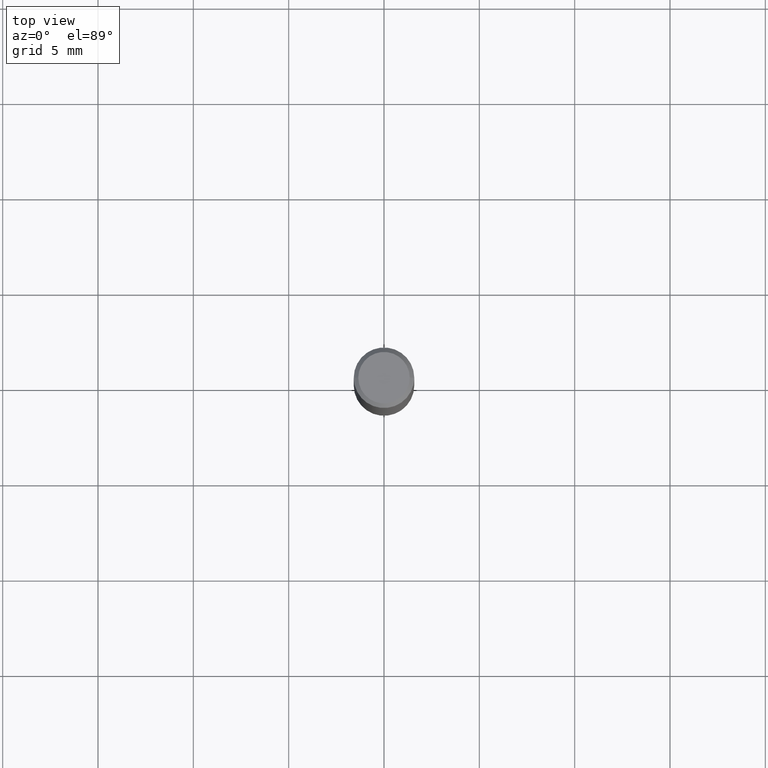
[diagram: clean part render]
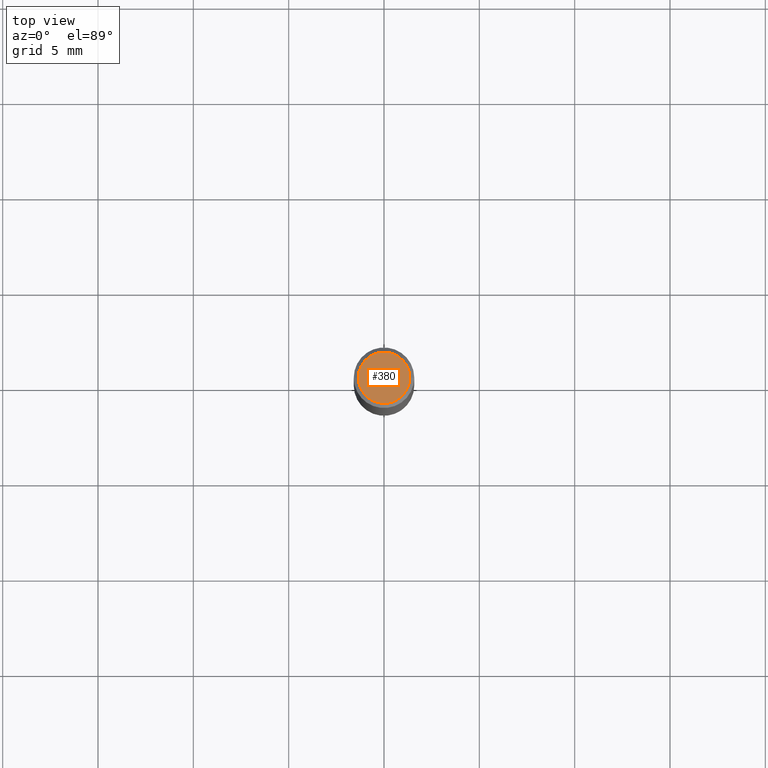
[diagram: same view with one face highlighted and labeled with its STEP entity id]
A machine part, top view. The second image highlights one B-rep face of the part: STEP entity #380.
In plain terms, the highlighted planar face has unit normal (0, -0, -1).
Its self-contained STEP definition (entity closure, byte-faithful):
#59 = CARTESIAN_POINT ( 'NONE',  ( 0.05312499999999999861, -4.129888592719939842E-16, -5.787680772767651417E-18 ) ) ;
#86 = AXIS2_PLACEMENT_3D ( 'NONE', #349, #297, #576 ) ;
#104 = FACE_OUTER_BOUND ( 'NONE', #316, .T. ) ;
#117 = ORIENTED_EDGE ( 'NONE', *, *, #335, .T. ) ;
#164 = AXIS2_PLACEMENT_3D ( 'NONE', #247, #286, #462 ) ;
#242 = DIRECTION ( 'NONE',  ( -2.445468806185136597E-29, 3.491481338843145583E-15, 1.000000000000000000 ) ) ;
#246 = VERTEX_POINT ( 'NONE', #445 ) ;
#247 = CARTESIAN_POINT ( 'NONE',  ( 7.076796394983739835E-47, -1.010378970665454992E-32, -2.893840386385196200E-18 ) ) ;
#286 = DIRECTION ( 'NONE',  ( 2.438088387897960049E-29, -3.491481338843145188E-15, -1.000000000000000000 ) ) ;
#297 = DIRECTION ( 'NONE',  ( -2.445468806185136597E-29, 3.491481338843145583E-15, 1.000000000000000000 ) ) ;
#316 = EDGE_LOOP ( 'NONE', ( #350, #117 ) ) ;
#329 = CIRCLE ( 'NONE', #540, 0.05312499999999999861 ) ;
#332 = DIRECTION ( 'NONE',  ( 1.000000000000000000, -6.982962677686266711E-15, 4.875930095424100059E-29 ) ) ;
#335 = EDGE_CURVE ( 'NONE', #394, #246, #329, .T. ) ;
#349 = CARTESIAN_POINT ( 'NONE',  ( 1.415359278996747967E-46, -2.020757941330909984E-32, -5.787680772770392401E-18 ) ) ;
#350 = ORIENTED_EDGE ( 'NONE', *, *, #431, .T. ) ;
#380 = ADVANCED_FACE ( 'NONE', ( #104 ), #419, .F. ) ;
#383 = CARTESIAN_POINT ( 'NONE',  ( 1.415359278996747967E-46, -2.020757941330909984E-32, -5.787680772770392401E-18 ) ) ;
#394 = VERTEX_POINT ( 'NONE', #59 ) ;
#419 = PLANE ( 'NONE',  #164 ) ;
#431 = EDGE_CURVE ( 'NONE', #246, #394, #583, .T. ) ;
#445 = CARTESIAN_POINT ( 'NONE',  ( -0.05312499999999999861, 3.873362110279099094E-16, -5.787680772773044021E-18 ) ) ;
#462 = DIRECTION ( 'NONE',  ( -1.000000000000000000, 6.982962677686265922E-15, -4.876176775795935793E-29 ) ) ;
#540 = AXIS2_PLACEMENT_3D ( 'NONE', #383, #242, #332 ) ;
#576 = DIRECTION ( 'NONE',  ( 1.000000000000000000, -6.982962677686266711E-15, 4.875930095424100059E-29 ) ) ;
#583 = CIRCLE ( 'NONE', #86, 0.05312499999999999861 ) ;